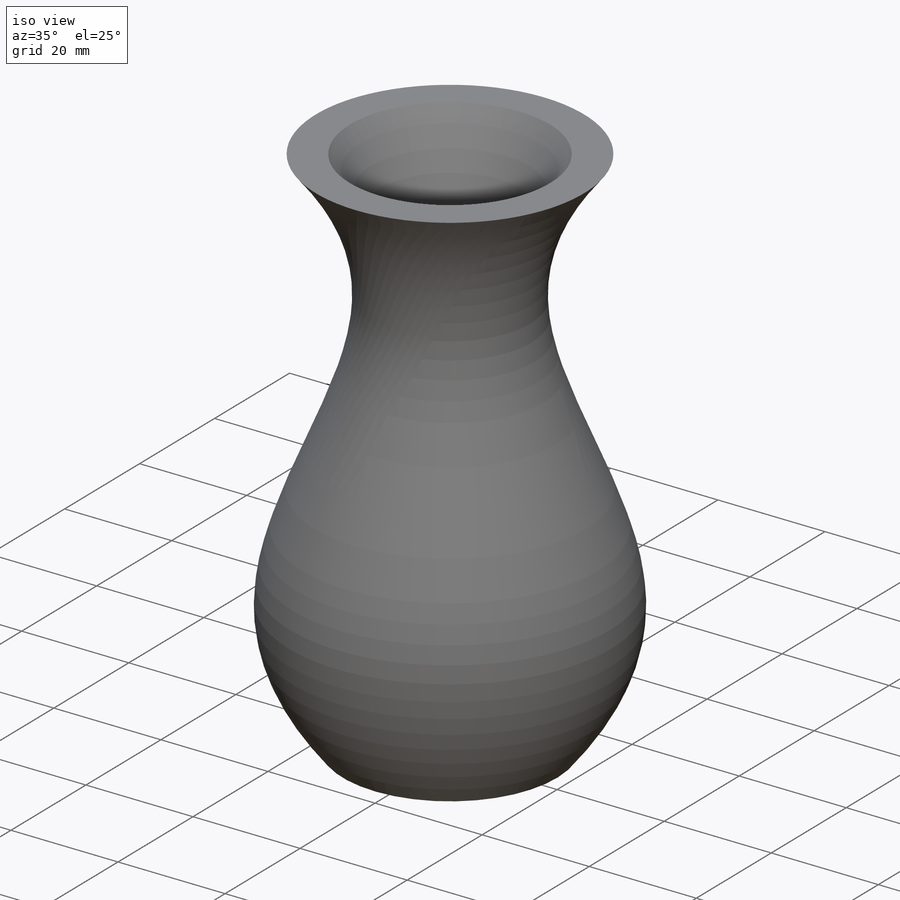
[diagram: iso view]
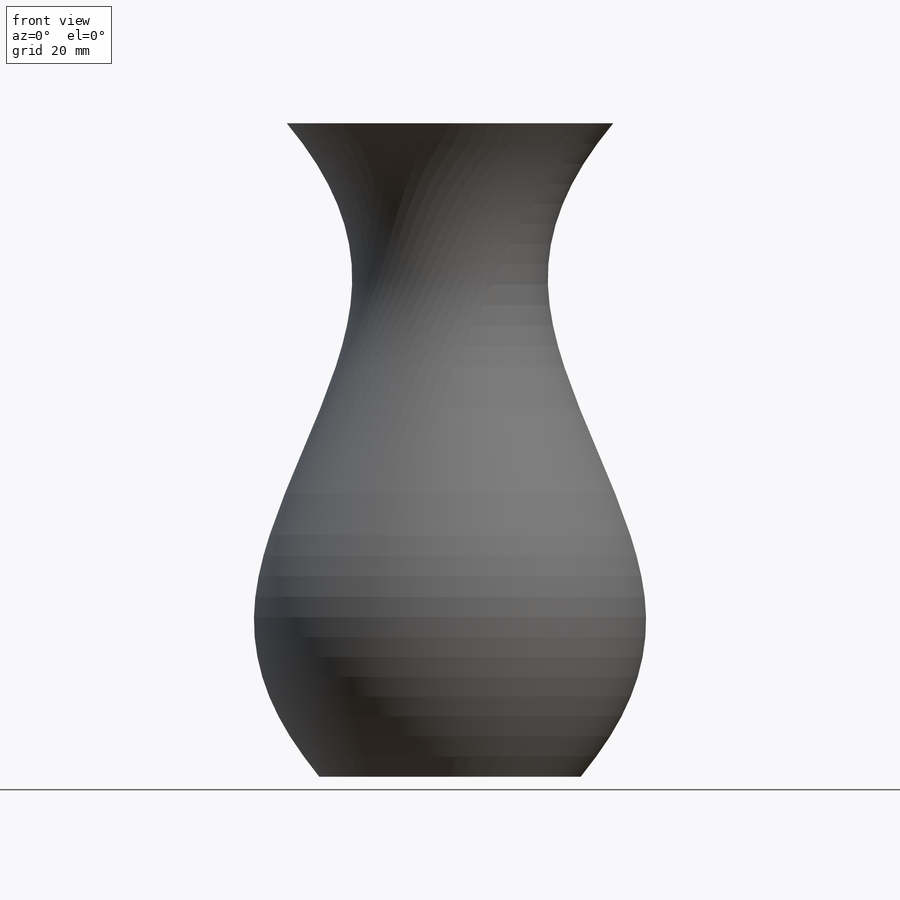
[diagram: front view]
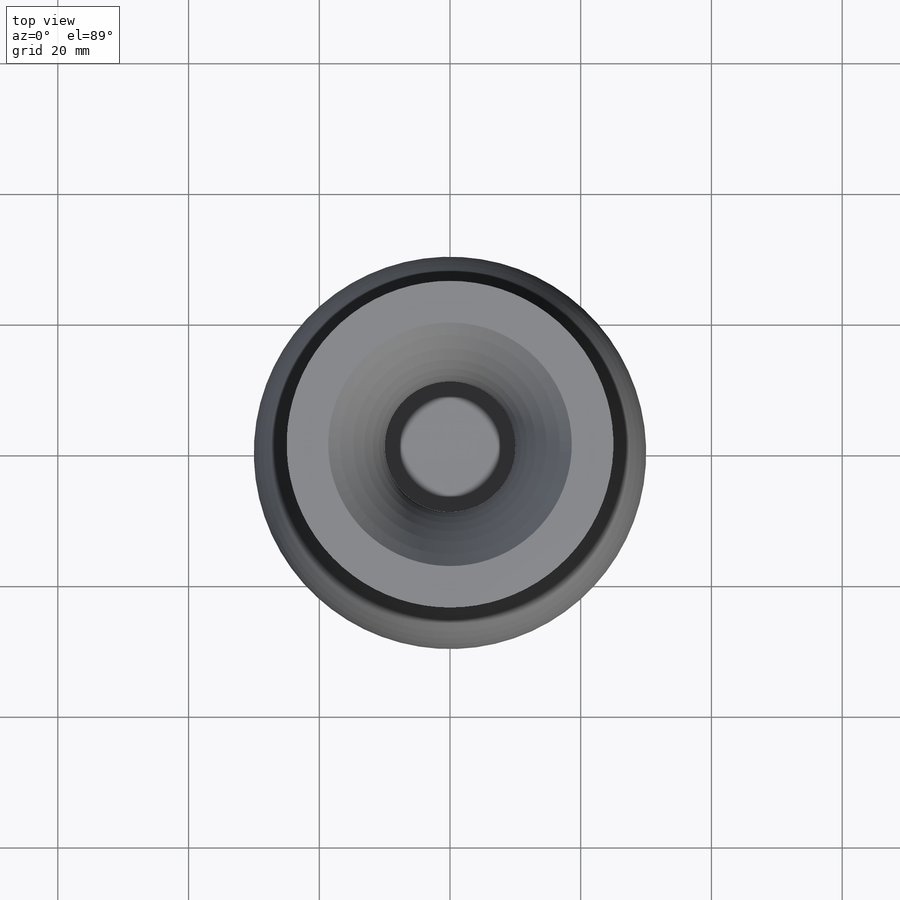
[diagram: top view]
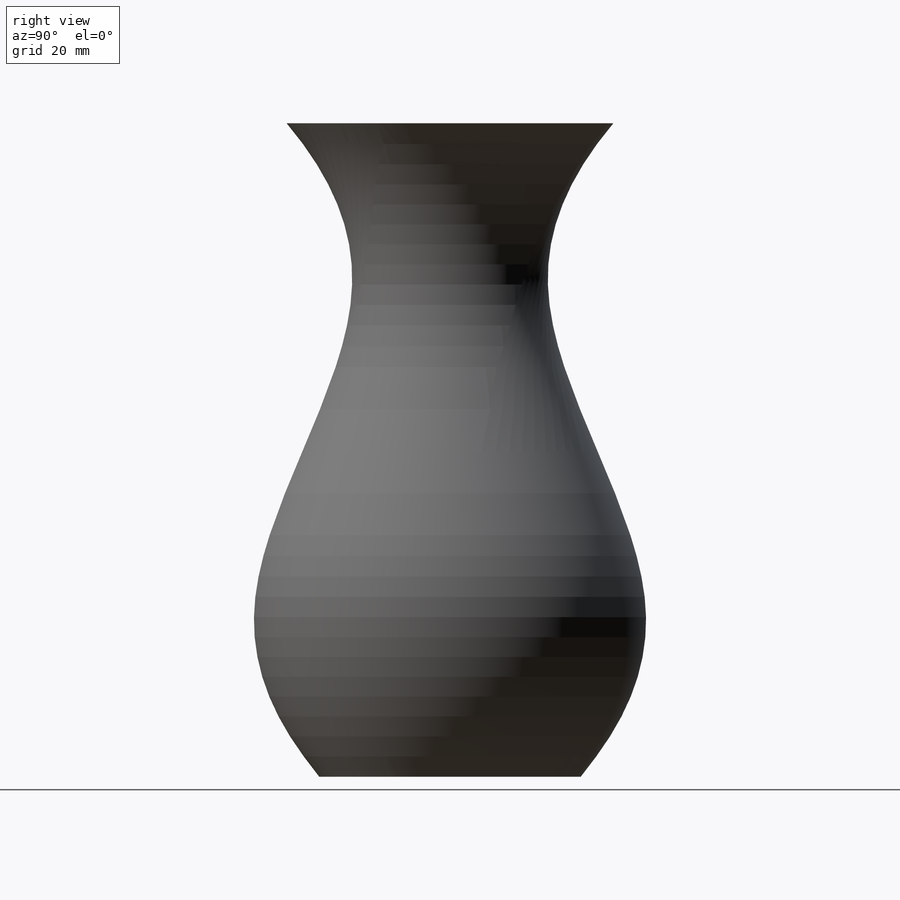
[diagram: right view]
SOLIDWORKS PART (.sldprt)
format: sldprt  version: not decoded by parser v0  size: 257,536 bytes
history: native  units: mm
features: sketch x4, plane x3, material x1, shell x1 (+16 scaffold rows collapsed)
feature tree (25):
  scaffold x16  (default folders/planes/origin — collapsed)
  material  "Material <not specified>"
  sketch  "Sketch1"  dims[D1=40.0mm]
  plane  "Plane1"  Offset=25mm
  sketch  "Sketch2"  dims[D1=60.0mm]
  plane  "Plane2"  Offset=75mm
  sketch  "Sketch3"  dims[D1=30.0mm]
  plane  "Plane3"  Offset=100mm
  sketch  "Sketch4"  dims[D1=50.0mm]
  shell  "Shell1"  Thickness=5mm
decode coverage: 5 of 5 modeling features carry decoded parameters
note: suppression state not decoded; provenance and decode notes live in map.json
